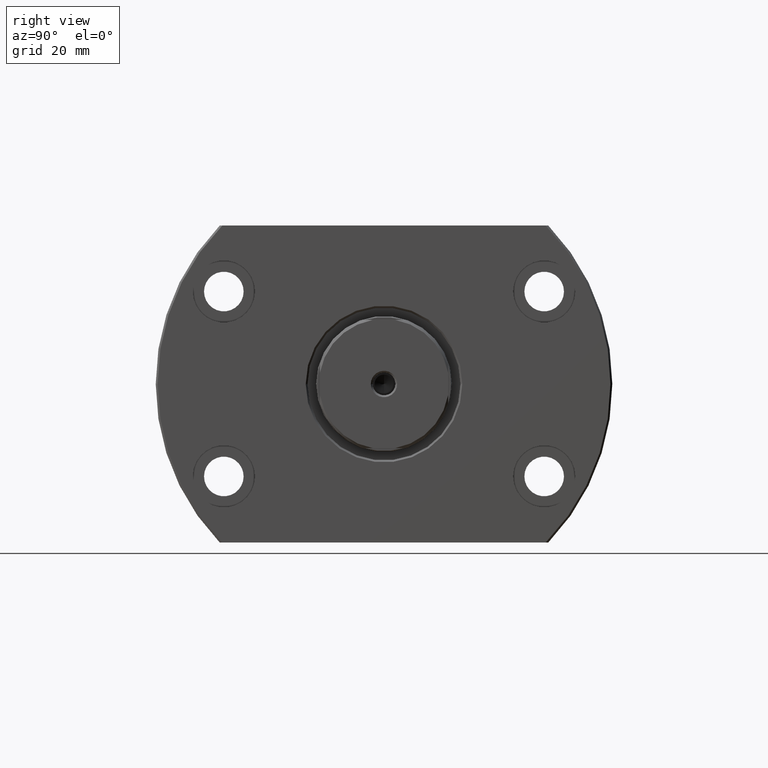
[diagram: clean part render]
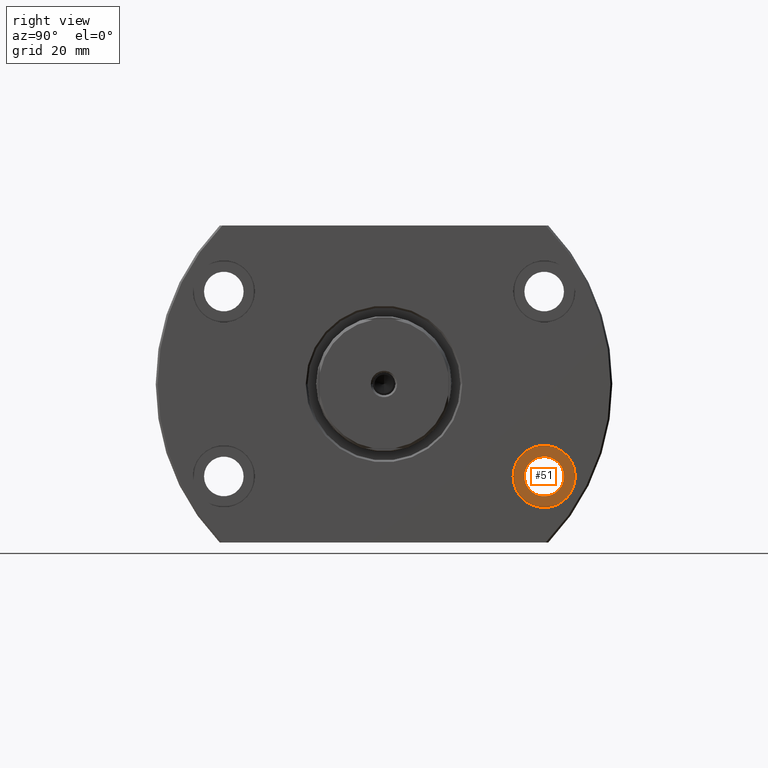
[diagram: same view with one face highlighted and labeled with its STEP entity id]
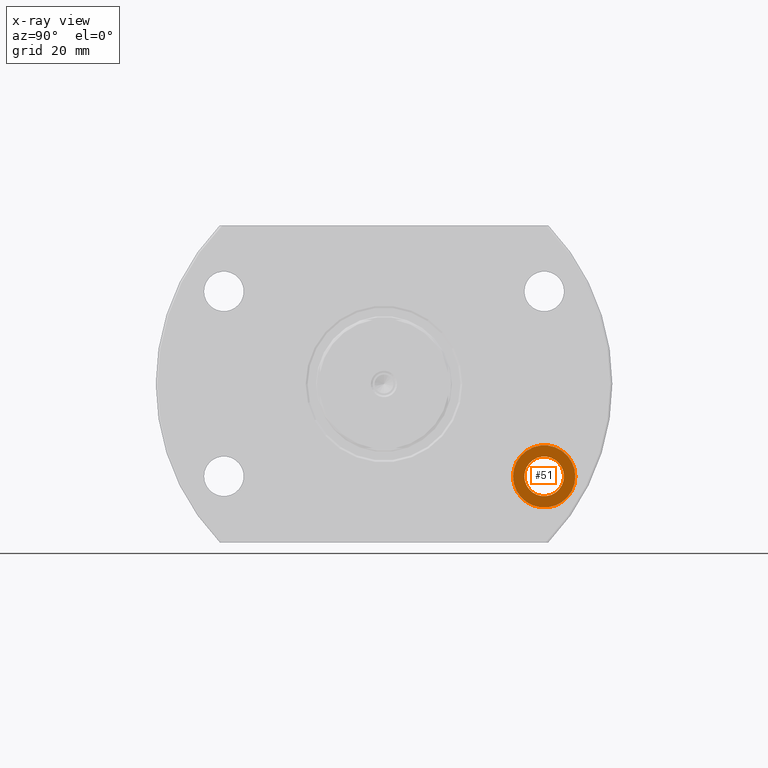
[diagram: x-ray of the same camera — body ghosted, the highlighted face saturated]
A machine part, right view. The second image highlights one B-rep face of the part: STEP entity #51.
The next image is the same camera in x-ray: the body ghosted, the highlighted face saturated — about 0% of this face is hidden behind the body in this view.
In plain terms, the highlighted planar face has unit normal (1, -0, -0).
Its self-contained STEP definition (entity closure, byte-faithful):
#51 = ADVANCED_FACE ( 'NONE', ( #2291, #3028 ), #2039, .T. ) ;
#120 = AXIS2_PLACEMENT_3D ( 'NONE', #1049, #2048, #1079 ) ;
#222 = CARTESIAN_POINT ( 'NONE',  ( 29.70000000000122498, 42.44999999999914309, -24.49999999999999645 ) ) ;
#255 = CARTESIAN_POINT ( 'NONE',  ( 29.70000000000146656, 50.69999999999915019, -24.49999999999999645 ) ) ;
#581 = CIRCLE ( 'NONE', #120, 5.249999999999997335 ) ;
#800 = CARTESIAN_POINT ( 'NONE',  ( 29.69999999999999574, -8.584207636969308790E-13, -1.268488335595387073E-28 ) ) ;
#932 = DIRECTION ( 'NONE',  ( 2.889302749805715994E-14, 1.000000000000000000, 0.000000000000000000 ) ) ;
#947 = CIRCLE ( 'NONE', #2472, 5.249999999999997335 ) ;
#1049 = CARTESIAN_POINT ( 'NONE',  ( 29.70000000000122498, 42.44999999999914309, -24.49999999999999645 ) ) ;
#1079 = DIRECTION ( 'NONE',  ( 2.907726969256363870E-14, 1.000000000000000000, 0.000000000000000000 ) ) ;
#1146 = AXIS2_PLACEMENT_3D ( 'NONE', #1388, #2121, #3094 ) ;
#1248 = VERTEX_POINT ( 'NONE', #255 ) ;
#1321 = AXIS2_PLACEMENT_3D ( 'NONE', #2239, #2175, #2227 ) ;
#1354 = ORIENTED_EDGE ( 'NONE', *, *, #2312, .F. ) ;
#1388 = CARTESIAN_POINT ( 'NONE',  ( 29.70000000000122498, 42.44999999999914309, -24.49999999999999645 ) ) ;
#1412 = AXIS2_PLACEMENT_3D ( 'NONE', #800, #1629, #932 ) ;
#1508 = EDGE_LOOP ( 'NONE', ( #1354, #1651 ) ) ;
#1569 = EDGE_CURVE ( 'NONE', #1248, #1884, #1737, .T. ) ;
#1602 = ORIENTED_EDGE ( 'NONE', *, *, #1697, .T. ) ;
#1629 = DIRECTION ( 'NONE',  ( 1.000000000000000000, -2.889302749805715994E-14, -3.155443620884047222E-30 ) ) ;
#1651 = ORIENTED_EDGE ( 'NONE', *, *, #2550, .F. ) ;
#1697 = EDGE_CURVE ( 'NONE', #1884, #1248, #2318, .T. ) ;
#1712 = CARTESIAN_POINT ( 'NONE',  ( 29.70000000000107221, 37.19999999999914309, -24.49999999999999645 ) ) ;
#1737 = CIRCLE ( 'NONE', #1146, 8.250000000000007105 ) ;
#1884 = VERTEX_POINT ( 'NONE', #2535 ) ;
#2039 = PLANE ( 'NONE',  #1412 ) ;
#2042 = VERTEX_POINT ( 'NONE', #2336 ) ;
#2048 = DIRECTION ( 'NONE',  ( 1.000000000000000000, -2.889302749805715994E-14, -3.155443620884047222E-30 ) ) ;
#2121 = DIRECTION ( 'NONE',  ( 1.000000000000000000, -2.889302749805715994E-14, -3.155443620884047222E-30 ) ) ;
#2175 = DIRECTION ( 'NONE',  ( 1.000000000000000000, -2.889302749805715994E-14, -3.155443620884047222E-30 ) ) ;
#2227 = DIRECTION ( 'NONE',  ( 2.901719268906656730E-14, 1.000000000000000000, 0.000000000000000000 ) ) ;
#2239 = CARTESIAN_POINT ( 'NONE',  ( 29.70000000000122498, 42.44999999999914309, -24.49999999999999645 ) ) ;
#2291 = FACE_BOUND ( 'NONE', #1508, .T. ) ;
#2312 = EDGE_CURVE ( 'NONE', #2042, #2551, #581, .T. ) ;
#2318 = CIRCLE ( 'NONE', #1321, 8.250000000000007105 ) ;
#2336 = CARTESIAN_POINT ( 'NONE',  ( 29.70000000000137774, 47.69999999999913598, -24.49999999999999645 ) ) ;
#2472 = AXIS2_PLACEMENT_3D ( 'NONE', #222, #3205, #2916 ) ;
#2535 = CARTESIAN_POINT ( 'NONE',  ( 29.70000000000098694, 34.19999999999913598, -24.49999999999999645 ) ) ;
#2550 = EDGE_CURVE ( 'NONE', #2551, #2042, #947, .T. ) ;
#2551 = VERTEX_POINT ( 'NONE', #1712 ) ;
#2564 = EDGE_LOOP ( 'NONE', ( #2817, #1602 ) ) ;
#2817 = ORIENTED_EDGE ( 'NONE', *, *, #1569, .T. ) ;
#2916 = DIRECTION ( 'NONE',  ( 2.907726969256363870E-14, 1.000000000000000000, 0.000000000000000000 ) ) ;
#3028 = FACE_OUTER_BOUND ( 'NONE', #2564, .T. ) ;
#3094 = DIRECTION ( 'NONE',  ( 2.901719268906656730E-14, 1.000000000000000000, 0.000000000000000000 ) ) ;
#3205 = DIRECTION ( 'NONE',  ( 1.000000000000000000, -2.889302749805715994E-14, -3.155443620884047222E-30 ) ) ;